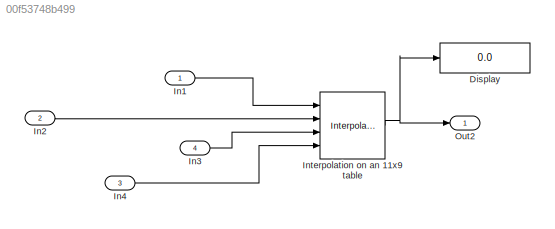
MODEL slx_00f53748b499
KIND model
CONFIG AbsTol = auto
CONFIG EnableMultiTasking = on
CONFIG FixedStep = 0.1
CONFIG MaxStep = auto
CONFIG MinStep = auto
CONFIG RelTol = 1e-3
CONFIG SampleTimeConstraint = Unconstrained
CONFIG Solver = FixedStepAuto
CONFIG SolverName = FixedStepAuto
CONFIG StartTime = 0.0
CONFIG StopTime = 10.0
BLOCK [Display] Display
  Decimation = 1
  Ports = [1]
BLOCK [Inport] In1
  IconDisplay = Port number
  OutMax = 15
  OutMin = 0
BLOCK [Inport] In2
  IconDisplay = Port number
  OutMax = 1.7
  OutMin = -.5
  Port = 2
BLOCK [Inport] In3
  IconDisplay = Port number
  OutMax = 15
  OutMin = 0
  Port = 4
BLOCK [Inport] In4
  IconDisplay = Port number
  OutMax = 1.7
  OutMin = -.5
  Port = 3
BLOCK [Interpolation_n-D] Interpolation on an 11x9 table
  ExtrapMethod = Clip
  InputPortMap = u0,u1,u2,u3
  InterpMethod = Flat
  Ports = [4, 1]
  Table = reshape([1:99], [11,9])
  ValidIndexMayReachLast = on
BLOCK [Outport] Out2
  IconDisplay = Port number
LINE In1:1 -> Interpolation on an 11x9 table:1
LINE In2:1 -> Interpolation on an 11x9 table:2
LINE In3:1 -> Interpolation on an 11x9 table:3
LINE In4:1 -> Interpolation on an 11x9 table:4
NET Interpolation on an 11x9 table:1 -> Display:1, Out2:1
note: NET lines group one-source signal fan-out (src -> all destinations, sorted); 1:1 wires keep LINE
